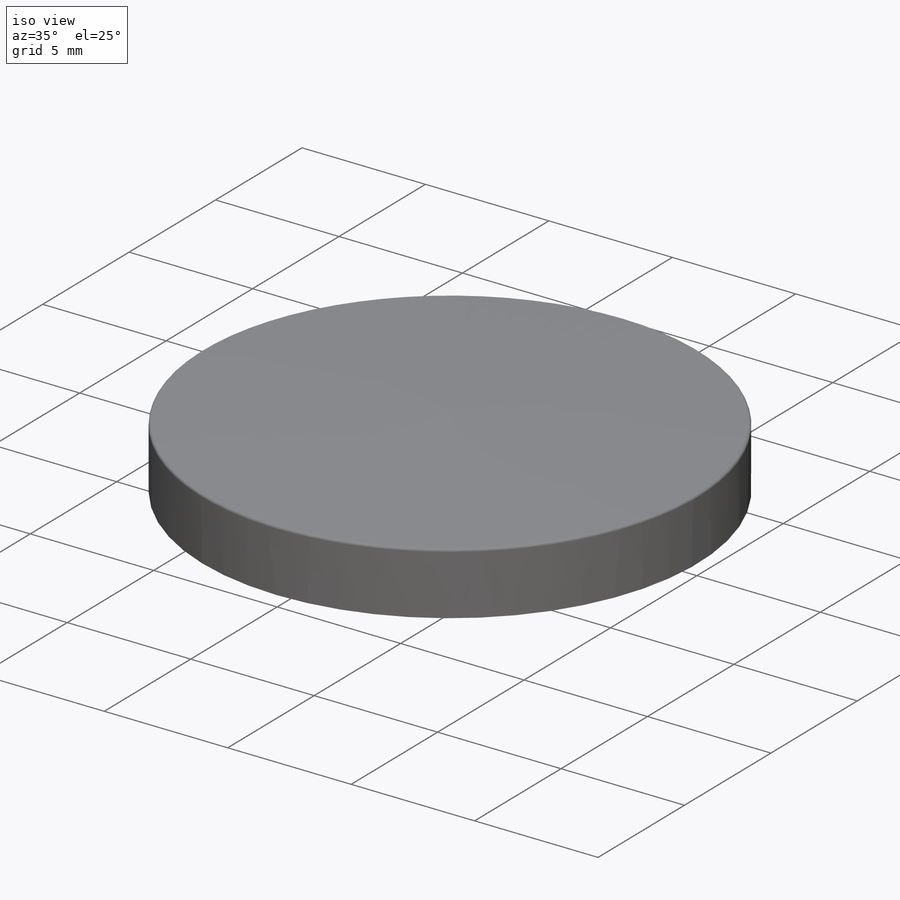
[diagram: iso view]
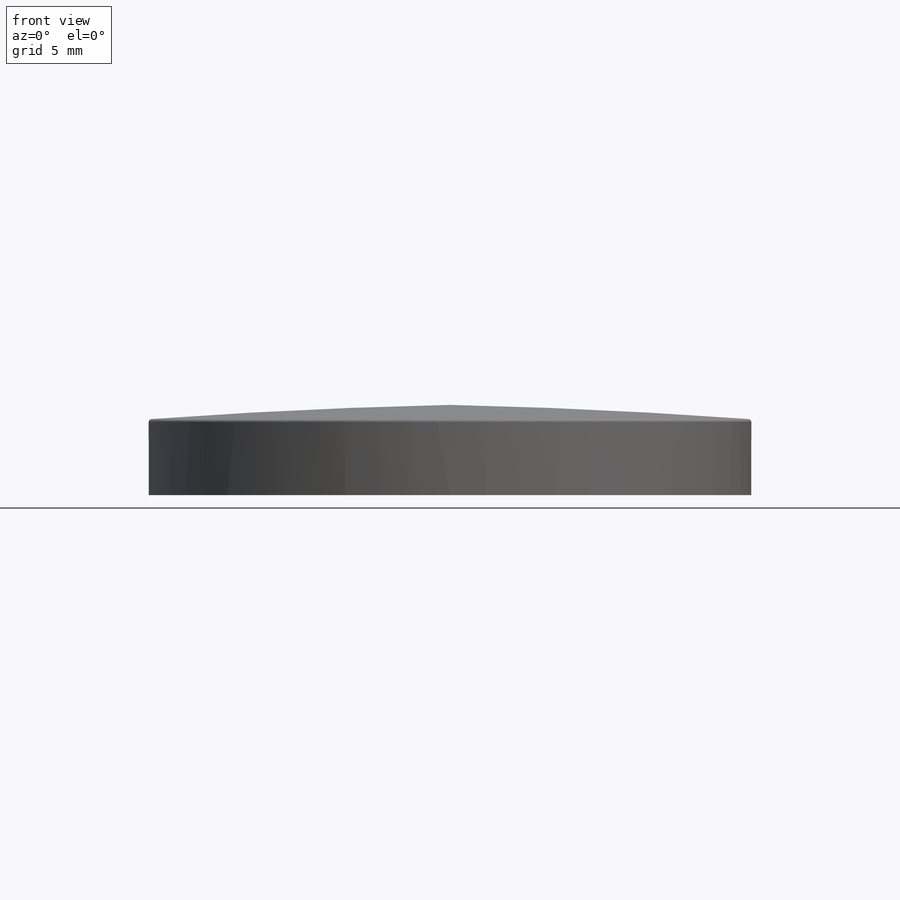
[diagram: front view]
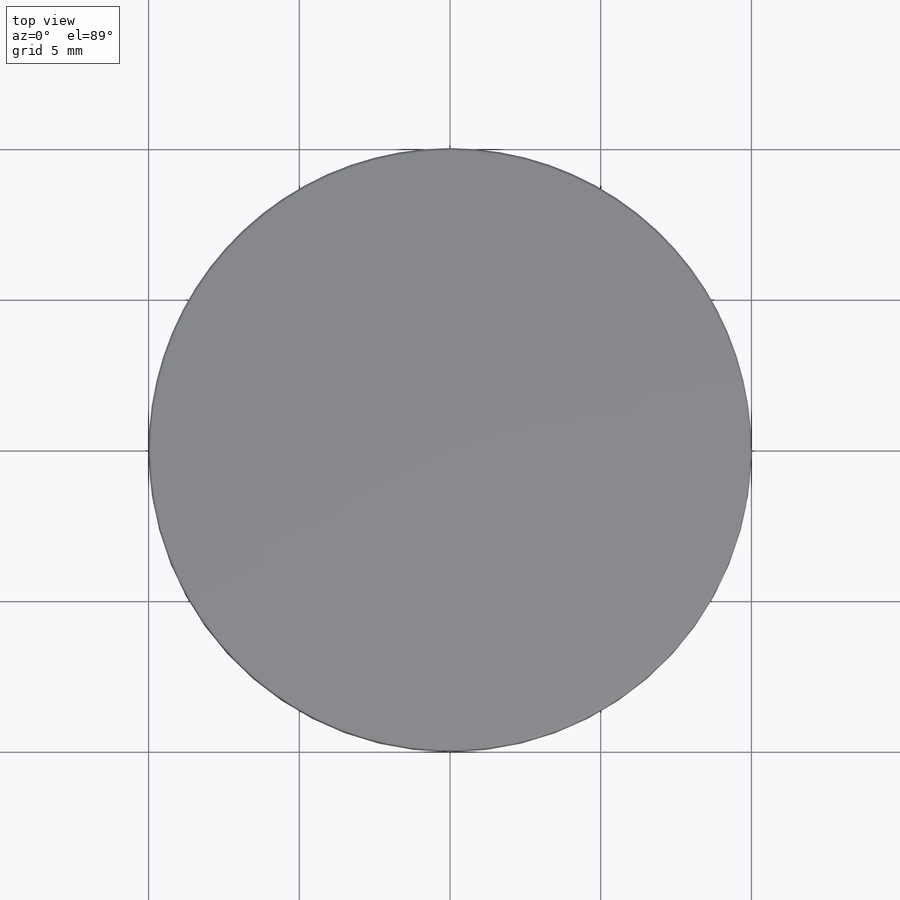
[diagram: top view]
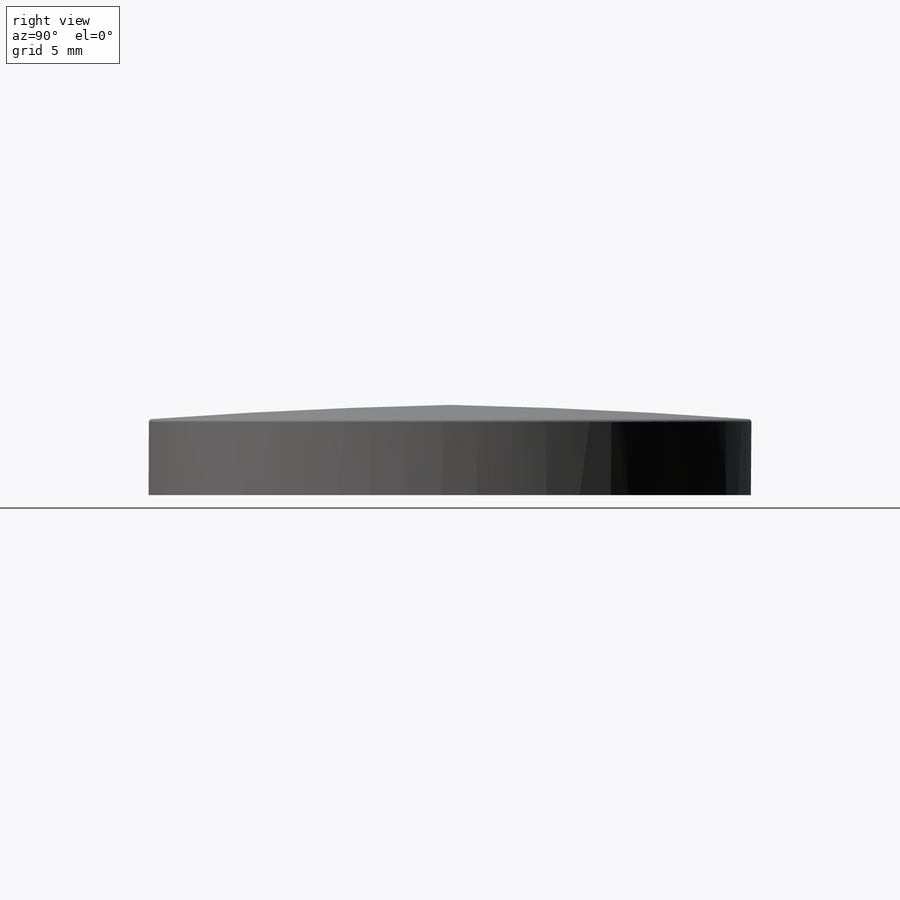
[diagram: right view]
SOLIDWORKS PART (.sldprt)
format: sldprt  version: not decoded by parser v0  size: 566,784 bytes
history: native  units: mm
features: sketch x4, cut_extrude x2, material x1, revolve x1, fillet x1 (+13 scaffold rows collapsed)
feature tree (22):
  scaffold x13  (default folders/planes/origin — collapsed)
  material  "Material <not specified>"
  sketch  "Sketch2"  dims[c1.D1=~195.275972mm c1.D2=~195.275972mm c2.D1=10.0mm]
  revolve  "Revolve1"  Angle=360deg
  fillet  "Fillet1"  Radius=0.1mm
  sketch  "3DSketch1"
  sketch  "Sketch14"
  cut_extrude  "Cut-Extrude30"  Depth=2.5mm
  sketch  "Sketch15"  dims[D1=0.8mm D2=0.8mm D3=0.8mm D4=3.7mm D5=3.7mm D6=~1.019728mm D7=~1.019728mm D8=~0.726346mm]
  cut_extrude  "Cut-Extrude32"  Depth=2.5mm
decode coverage: 6 of 8 modeling features carry decoded parameters
note: ~ marks probable driven/reference dimensions
note: suppression state not decoded; provenance and decode notes live in map.json
